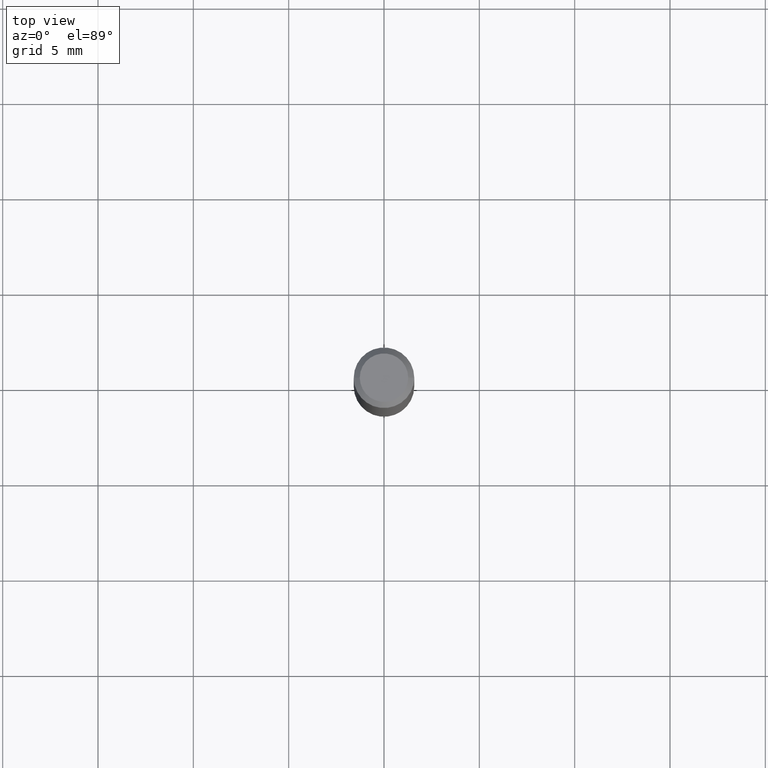
[diagram: clean part render]
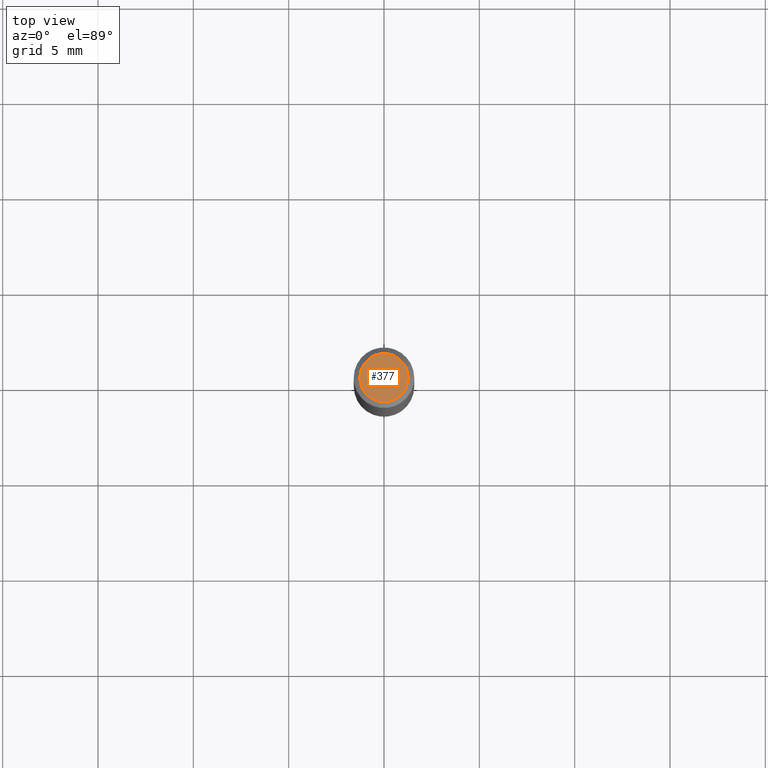
[diagram: same view with one face highlighted and labeled with its STEP entity id]
A machine part, top view. The second image highlights one B-rep face of the part: STEP entity #377.
In plain terms, the highlighted planar face has unit normal (0, -0, -1).
Its self-contained STEP definition (entity closure, byte-faithful):
#10 = AXIS2_PLACEMENT_3D ( 'NONE', #443, #339, #481 ) ;
#11 = AXIS2_PLACEMENT_3D ( 'NONE', #322, #168, #15 ) ;
#15 = DIRECTION ( 'NONE',  ( -1.000000000000000000, 6.982962677686265922E-15, -4.876176775795935793E-29 ) ) ;
#37 = ORIENTED_EDGE ( 'NONE', *, *, #313, .T. ) ;
#53 = EDGE_CURVE ( 'NONE', #382, #169, #300, .T. ) ;
#84 = CIRCLE ( 'NONE', #384, 0.04999999999999999584 ) ;
#101 = ORIENTED_EDGE ( 'NONE', *, *, #53, .T. ) ;
#162 = DIRECTION ( 'NONE',  ( -2.445468806185136597E-29, 3.491481338843145583E-15, 1.000000000000000000 ) ) ;
#168 = DIRECTION ( 'NONE',  ( 2.438088387897960049E-29, -3.491481338843145188E-15, -1.000000000000000000 ) ) ;
#169 = VERTEX_POINT ( 'NONE', #188 ) ;
#188 = CARTESIAN_POINT ( 'NONE',  ( 0.04999999999999999584, -4.077247707424184705E-16, -1.592040838888913461E-18 ) ) ;
#198 = CARTESIAN_POINT ( 'NONE',  ( 3.893286209682126177E-47, -5.558580879666067980E-33, -1.592040838891559689E-18 ) ) ;
#208 = PLANE ( 'NONE',  #11 ) ;
#280 = CARTESIAN_POINT ( 'NONE',  ( -0.04999999999999999584, 3.709698922520826725E-16, -1.592040838894077649E-18 ) ) ;
#300 = CIRCLE ( 'NONE', #10, 0.04999999999999999584 ) ;
#313 = EDGE_CURVE ( 'NONE', #169, #382, #84, .T. ) ;
#322 = CARTESIAN_POINT ( 'NONE',  ( 1.946643104841063088E-47, -2.779290439833033990E-33, -7.960204194457798443E-19 ) ) ;
#339 = DIRECTION ( 'NONE',  ( -2.445468806185136597E-29, 3.491481338843145583E-15, 1.000000000000000000 ) ) ;
#357 = FACE_OUTER_BOUND ( 'NONE', #365, .T. ) ;
#365 = EDGE_LOOP ( 'NONE', ( #101, #37 ) ) ;
#377 = ADVANCED_FACE ( 'NONE', ( #357 ), #208, .F. ) ;
#382 = VERTEX_POINT ( 'NONE', #280 ) ;
#384 = AXIS2_PLACEMENT_3D ( 'NONE', #198, #162, #416 ) ;
#416 = DIRECTION ( 'NONE',  ( 1.000000000000000000, -6.982962677686265922E-15, 4.875957971899673662E-29 ) ) ;
#443 = CARTESIAN_POINT ( 'NONE',  ( 3.893286209682126177E-47, -5.558580879666067980E-33, -1.592040838891559689E-18 ) ) ;
#481 = DIRECTION ( 'NONE',  ( 1.000000000000000000, -6.982962677686265922E-15, 4.875957971899673662E-29 ) ) ;